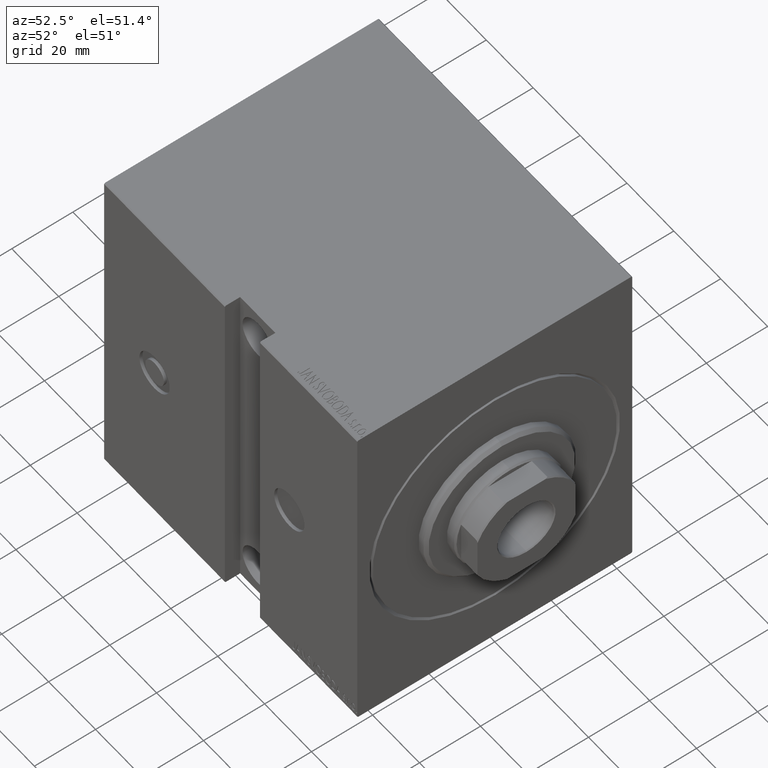
[diagram: clean part render]
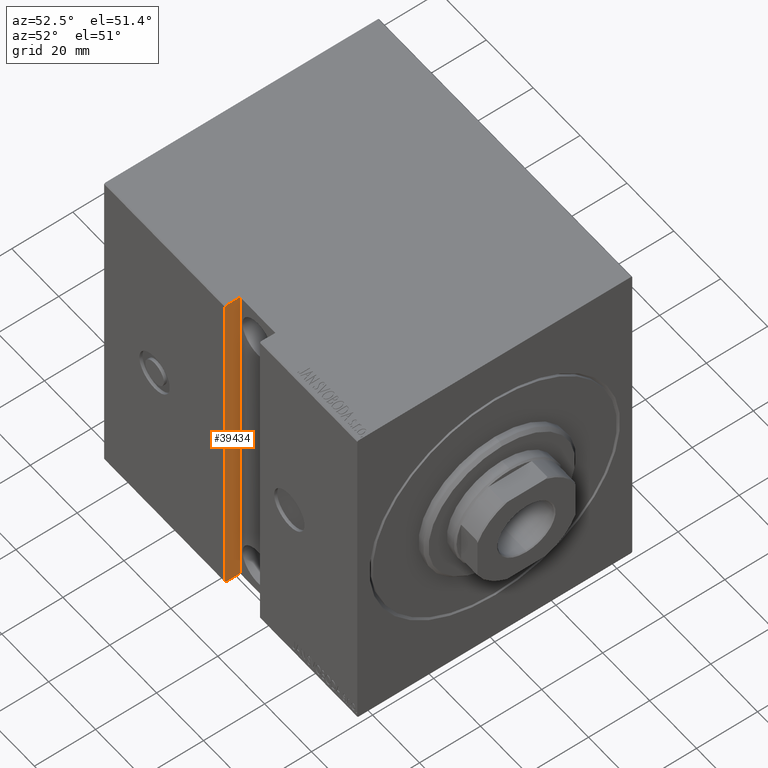
[diagram: same view with one face highlighted and labeled with its STEP entity id]
A machine part, auxiliary view. The second image highlights one B-rep face of the part: STEP entity #39434.
In plain terms, the highlighted planar face has unit normal (-1, 0, -0).
Its self-contained STEP definition (entity closure, byte-faithful):
#1908 = LINE ( 'NONE', #11367, #36252 ) ;
#2926 = VECTOR ( 'NONE', #34632, 1000.000000000000000 ) ;
#3075 = DIRECTION ( 'NONE',  ( -8.533111188498778777E-17, -0.7071067811865474617, -0.7071067811865474617 ) ) ;
#3152 = EDGE_CURVE ( 'NONE', #40242, #28838, #29715, .T. ) ;
#3323 = CARTESIAN_POINT ( 'NONE',  ( 56.50000000000000000, 45.00000000000001421, -57.50000000000000711 ) ) ;
#3413 = DIRECTION ( 'NONE',  ( -8.533111188498877384E-17, 0.7071067811865393571, -0.7071067811865556774 ) ) ;
#6439 = CARTESIAN_POINT ( 'NONE',  ( 56.50000000000001421, 44.70000000000001705, 57.50000000000001421 ) ) ;
#8419 = CARTESIAN_POINT ( 'NONE',  ( 56.50000000000000000, 40.00000000000001421, -57.50000000000000711 ) ) ;
#10106 = ORIENTED_EDGE ( 'NONE', *, *, #27376, .F. ) ;
#10676 = CARTESIAN_POINT ( 'NONE',  ( 56.50000000000000000, 45.00000000000001421, -57.20000000000004547 ) ) ;
#11145 = DIRECTION ( 'NONE',  ( -0.000000000000000000, 1.000000000000000000, -0.000000000000000000 ) ) ;
#11367 = CARTESIAN_POINT ( 'NONE',  ( 56.50000000000000000, 40.00000000000001421, -57.50000000000000711 ) ) ;
#11668 = CARTESIAN_POINT ( 'NONE',  ( 56.50000000000001421, 45.00000000000001421, 57.20000000000001705 ) ) ;
#11872 = EDGE_CURVE ( 'NONE', #33043, #40242, #39223, .T. ) ;
#12178 = DIRECTION ( 'NONE',  ( -1.206764157201257291E-16, -0.000000000000000000, -1.000000000000000000 ) ) ;
#13592 = CARTESIAN_POINT ( 'NONE',  ( 56.50000000000000000, 45.00000000000001421, -57.20000000000004547 ) ) ;
#14164 = CARTESIAN_POINT ( 'NONE',  ( 56.50000000000001421, 40.00000000000001421, 57.49999999999997868 ) ) ;
#17138 = AXIS2_PLACEMENT_3D ( 'NONE', #35193, #22293, #32185 ) ;
#20375 = LINE ( 'NONE', #24026, #32016 ) ;
#21583 = CARTESIAN_POINT ( 'NONE',  ( 56.50000000000000000, 44.70000000000004547, -57.50000000000000711 ) ) ;
#22085 = PLANE ( 'NONE',  #17138 ) ;
#22181 = EDGE_CURVE ( 'NONE', #28220, #33658, #20375, .T. ) ;
#22293 = DIRECTION ( 'NONE',  ( 1.000000000000000000, 0.000000000000000000, -1.206764157201257291E-16 ) ) ;
#22545 = LINE ( 'NONE', #6439, #40462 ) ;
#22935 = ORIENTED_EDGE ( 'NONE', *, *, #37437, .F. ) ;
#24026 = CARTESIAN_POINT ( 'NONE',  ( 56.50000000000001421, 40.00000000000001421, 57.49999999999997868 ) ) ;
#25084 = EDGE_LOOP ( 'NONE', ( #32640, #27778, #10106, #22935, #26535, #30411 ) ) ;
#25642 = VERTEX_POINT ( 'NONE', #27702 ) ;
#26535 = ORIENTED_EDGE ( 'NONE', *, *, #22181, .T. ) ;
#27376 = EDGE_CURVE ( 'NONE', #25642, #28838, #1908, .T. ) ;
#27702 = CARTESIAN_POINT ( 'NONE',  ( 56.50000000000001421, 40.00000000000002132, -57.50000000000000711 ) ) ;
#27778 = ORIENTED_EDGE ( 'NONE', *, *, #3152, .T. ) ;
#28220 = VERTEX_POINT ( 'NONE', #14164 ) ;
#28838 = VERTEX_POINT ( 'NONE', #21583 ) ;
#29715 = LINE ( 'NONE', #13592, #33134 ) ;
#30411 = ORIENTED_EDGE ( 'NONE', *, *, #39113, .T. ) ;
#30698 = DIRECTION ( 'NONE',  ( -0.000000000000000000, 1.000000000000000000, -0.000000000000000000 ) ) ;
#30978 = LINE ( 'NONE', #8419, #2926 ) ;
#32016 = VECTOR ( 'NONE', #11145, 1000.000000000000000 ) ;
#32185 = DIRECTION ( 'NONE',  ( -1.206764157201257291E-16, 0.000000000000000000, -1.000000000000000000 ) ) ;
#32591 = VECTOR ( 'NONE', #12178, 1000.000000000000000 ) ;
#32640 = ORIENTED_EDGE ( 'NONE', *, *, #11872, .T. ) ;
#33043 = VERTEX_POINT ( 'NONE', #11668 ) ;
#33134 = VECTOR ( 'NONE', #3075, 1000.000000000000114 ) ;
#33658 = VERTEX_POINT ( 'NONE', #40567 ) ;
#34632 = DIRECTION ( 'NONE',  ( -1.206764157201257291E-16, -0.000000000000000000, -1.000000000000000000 ) ) ;
#35193 = CARTESIAN_POINT ( 'NONE',  ( 56.50000000000000000, 40.00000000000001421, -57.50000000000000711 ) ) ;
#36252 = VECTOR ( 'NONE', #30698, 1000.000000000000000 ) ;
#37437 = EDGE_CURVE ( 'NONE', #28220, #25642, #30978, .T. ) ;
#38426 = FACE_OUTER_BOUND ( 'NONE', #25084, .T. ) ;
#39113 = EDGE_CURVE ( 'NONE', #33658, #33043, #22545, .T. ) ;
#39223 = LINE ( 'NONE', #3323, #32591 ) ;
#39434 = ADVANCED_FACE ( 'NONE', ( #38426 ), #22085, .F. ) ;
#40242 = VERTEX_POINT ( 'NONE', #10676 ) ;
#40462 = VECTOR ( 'NONE', #3413, 1000.000000000000000 ) ;
#40567 = CARTESIAN_POINT ( 'NONE',  ( 56.50000000000001421, 44.70000000000001705, 57.49999999999997868 ) ) ;